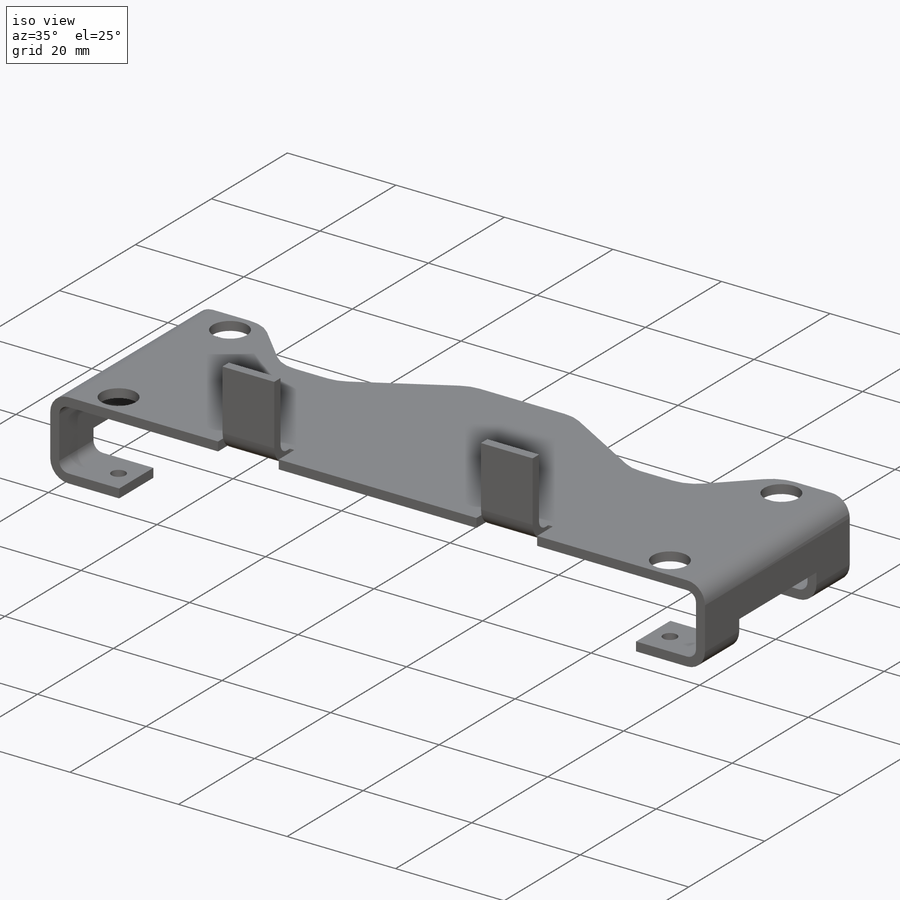
[diagram: iso view]
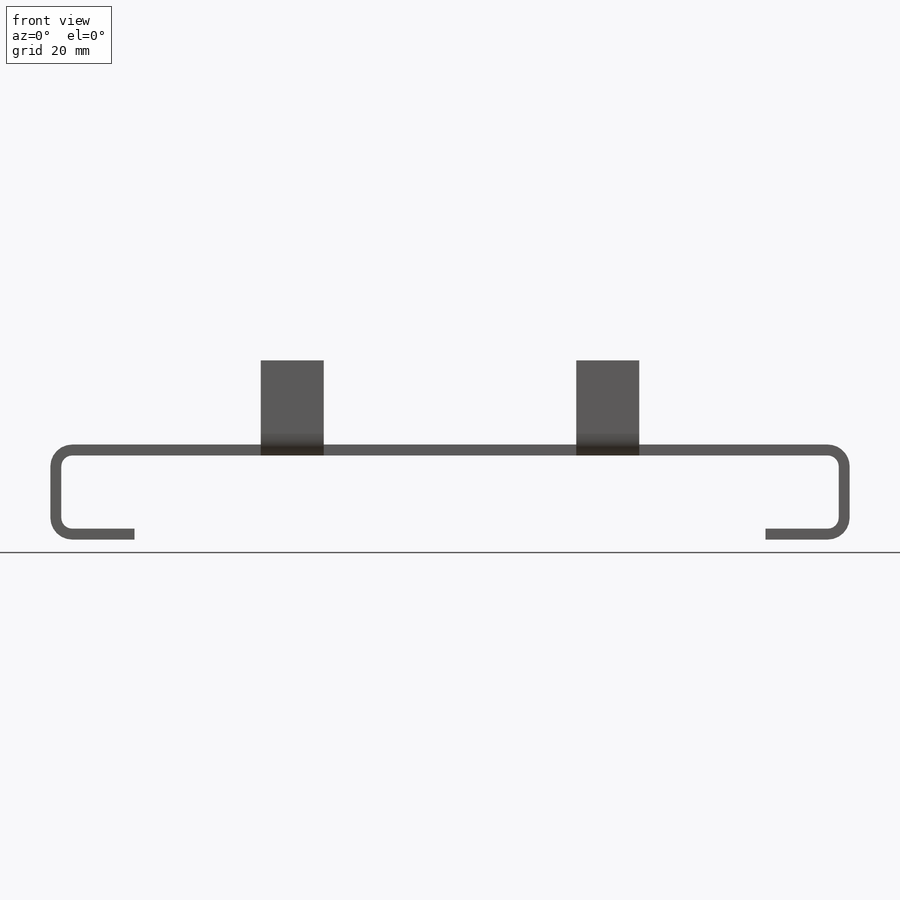
[diagram: front view]
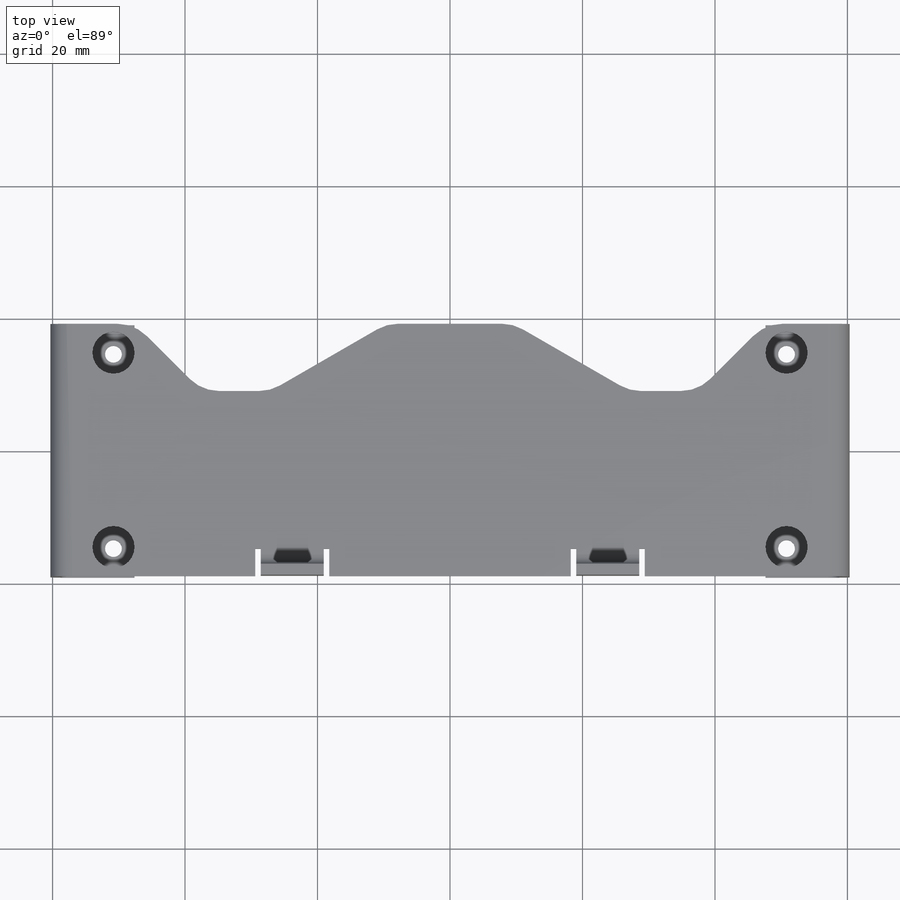
[diagram: top view]
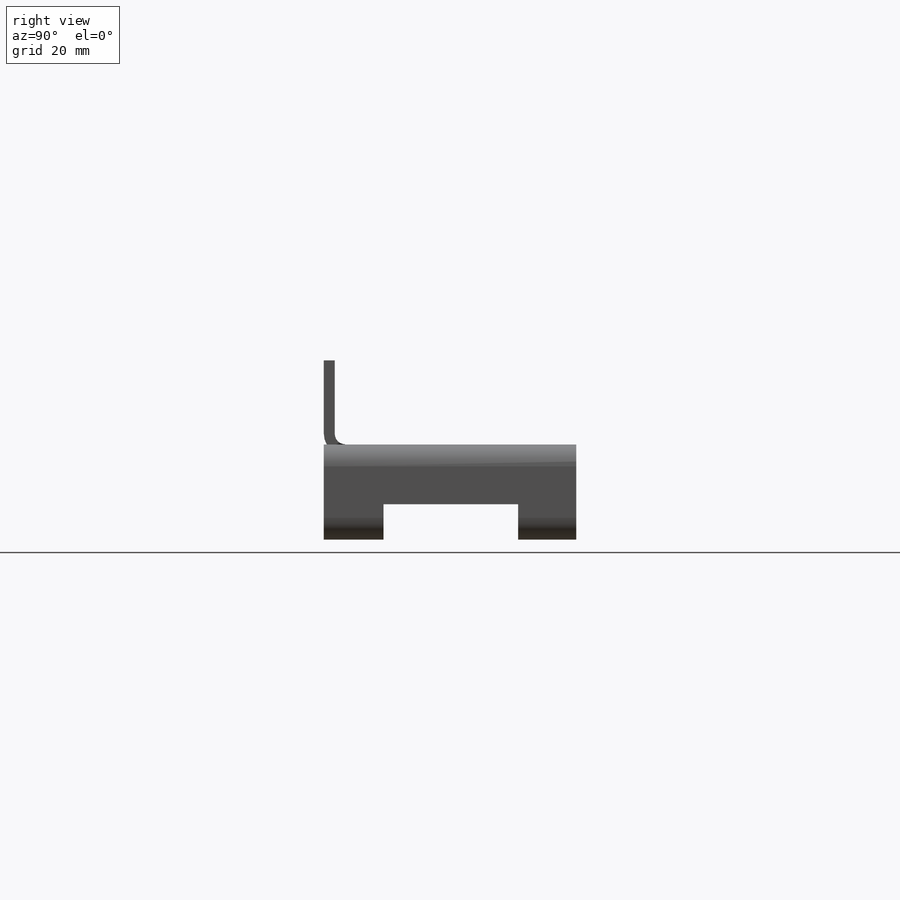
[diagram: right view]
SOLIDWORKS PART (.sldprt)
format: sldprt  version: not decoded by parser v0  size: 590,336 bytes
history: native  units: mm
features: sketch x10, cut_extrude x7, fillet x6, sheet_metal_op x5, mirror x2, material x1 + 1 further entry (+15 scaffold rows collapsed; 1 parser-record rows omitted)
feature tree (48):
  scaffold x15  (default folders/planes/origin — collapsed)
  material  "6061 Alloy"
  sketch  "Sketch1"  dims[c1.D1=~85.427999mm c2.D1=120.65mm c2.D2=14.351mm c2.D3=12.7mm]
  sheet_metal_op  "Sheet-Metal1"  Thickness=1.651mm
  sheet_metal_op  "Base-Flange1"
  sheet_metal_op  "BaseBend2"
  sheet_metal_op  "BaseBend3"
  sheet_metal_op  "BaseBend4"
  sketch  "Sketch3"  dims[c1.D1=14.605mm c1.D2=8.763mm c2.D1=20.32mm]
  cut_extrude  "Extrude1"  [1 undecoded]
  sketch  "Sketch6"  dims[c1.D1=9.525mm c1.D2=12.7mm c1.D3=19.05mm c2.D1=1.651mm c2.D4=90.0deg c2.D5=7.0 c2.D8=0.8255mm c2.D9=0.8255mm c3.D1=1.651mm c3.D2=500.0mm c3.D3=0.0mm c3.D6=10.0mm c3.D7=12.7mm]
  mirror  "Mirror1"
  sketch  "Sketch7"  dims[D1=2.54mm]
  cut_extrude  "Cut-Extrude1"  [1 undecoded]
  sketch  "Sketch8"  dims[D1=6.35mm]
  cut_extrude  "Extrude2"  [1 undecoded]
  sketch  "Sketch10"  dims[D1=2.032mm]
  cut_extrude  "Extrude3"  [1 undecoded]
  mirror  "Mirror2"
  sketch  "Sketch17"  dims[c1.D1=2.413mm c1.D2=2.413mm c1.D3=2.413mm c1.D5=12.7mm c2.D2=11.557mm c2.D3=10.414mm c2.D1=10.414mm c3.D2=11.557mm c3.D3=6.35mm c3.D4=2.413mm]
  cut_extrude  "Cut-Extrude2"  [1 undecoded]
  sketch  "Sketch16"  dims[c1.D1=9.525mm c1.D2=10.16mm c1.D3=~16.004129mm c2.D3=30.0deg c2.D4=~11.924963mm c3.D4=45.0deg c3.D5=38.1mm]
  cut_extrude  "Extrude6"  [1 undecoded]
  fillet  "Fillet1"  Radius=6.35mm
  "Flat-Pattern1"
  sketch  "Bend-Lines1"
  fillet  "Flatten-<BaseBend2>1"  [1 undecoded]
  fillet  "Flatten-<BaseBend3>1"  [1 undecoded]
  fillet  "Flatten-<BaseBend4>1"  [1 undecoded]
  fillet  "Flatten-<EdgeBend1>1"  [1 undecoded]
  fillet  "Flatten-<MirrorBend1>1"  [1 undecoded]
  parser-record x1  (decoder bookkeeping rows leaked as tree rows — omitted from the tree; the rows remain in map.json)
  sketch  "Sketch15"  dims[D1=1.27mm D2=2.032mm]
  cut_extrude  "Extrude5"  [1 undecoded]
decode coverage: 11 of 30 modeling features carry decoded parameters; 1 rows unclassified (native names shown)
note: ~ marks probable driven/reference dimensions
note: 12 parameter values undecoded
summary: no parameter record found for 12 features
note: suppression state not decoded; provenance and decode notes live in map.json
